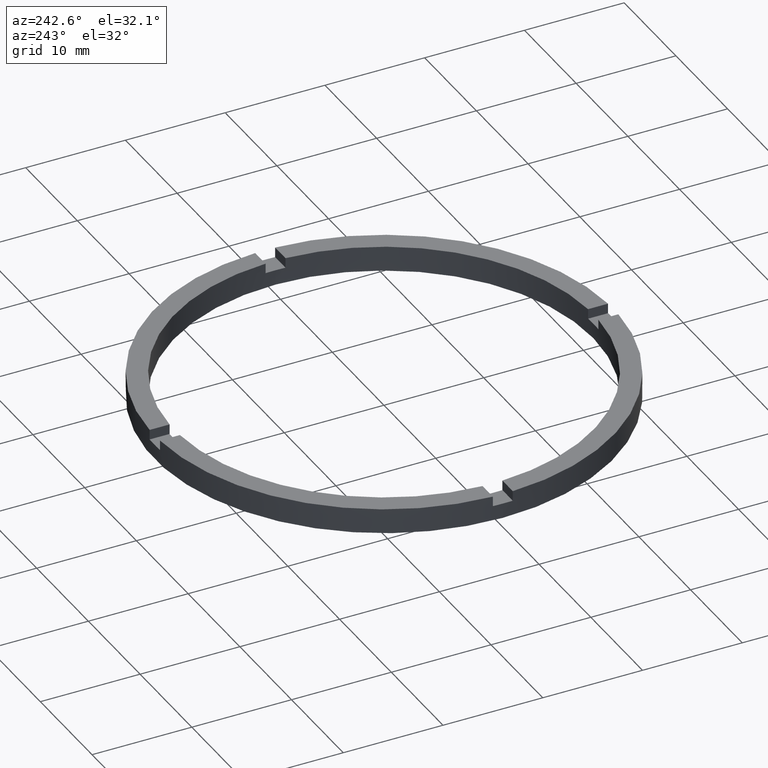
[diagram: clean part render]
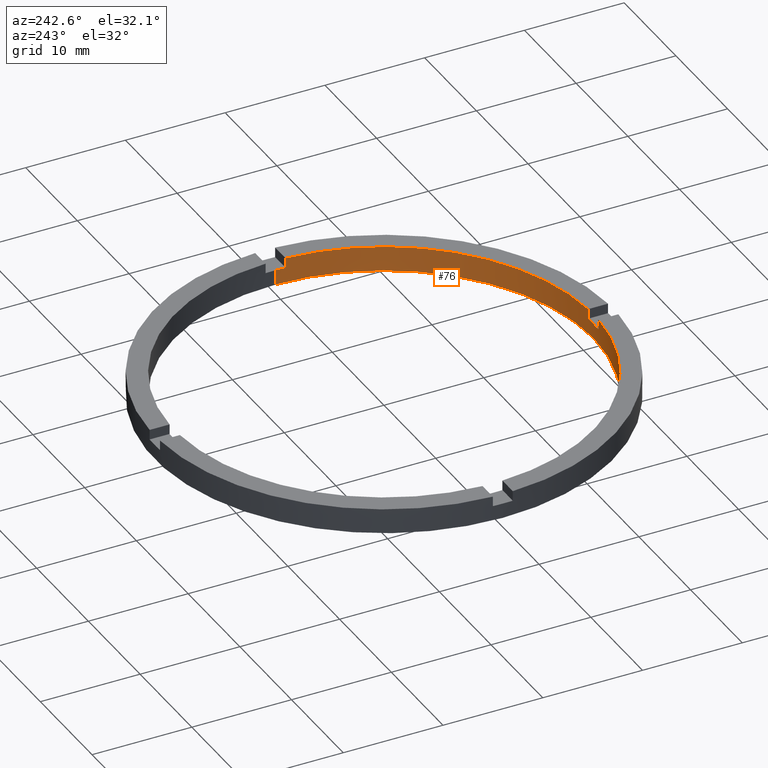
[diagram: same view with one face highlighted and labeled with its STEP entity id]
A machine part, auxiliary view. The second image highlights one B-rep face of the part: STEP entity #76.
In plain terms, the highlighted cylindrical surface (partial cylindrical patch) has radius 21 mm, axis along (-0, -0, -1).
Its self-contained STEP definition (entity closure, byte-faithful):
#5 = ORIENTED_EDGE ( 'NONE', *, *, #530, .F. ) ;
#27 = AXIS2_PLACEMENT_3D ( 'NONE', #288, #682, #547 ) ;
#30 = DIRECTION ( 'NONE',  ( -0.000000000000000000, -0.000000000000000000, -1.000000000000000000 ) ) ;
#33 = DIRECTION ( 'NONE',  ( 0.000000000000000000, 0.000000000000000000, 1.000000000000000000 ) ) ;
#35 = EDGE_CURVE ( 'NONE', #267, #528, #377, .T. ) ;
#39 = ORIENTED_EDGE ( 'NONE', *, *, #207, .F. ) ;
#42 = VERTEX_POINT ( 'NONE', #181 ) ;
#50 = CARTESIAN_POINT ( 'NONE',  ( -1.000000000000161204, -20.97617696340302373, 1.500000000000000000 ) ) ;
#54 = ORIENTED_EDGE ( 'NONE', *, *, #261, .F. ) ;
#55 = EDGE_CURVE ( 'NONE', #273, #751, #109, .T. ) ;
#56 = CARTESIAN_POINT ( 'NONE',  ( 0.9999999999998389066, -20.97617696340304150, 1.500000000000000000 ) ) ;
#57 = CARTESIAN_POINT ( 'NONE',  ( -1.000000000000161204, -20.97617696340302373, 2.500000000000000000 ) ) ;
#58 = DIRECTION ( 'NONE',  ( 0.000000000000000000, 0.000000000000000000, 1.000000000000000000 ) ) ;
#60 = CARTESIAN_POINT ( 'NONE',  ( 0.000000000000000000, 0.000000000000000000, 1.500000000000000000 ) ) ;
#76 = ADVANCED_FACE ( 'NONE', ( #131 ), #125, .F. ) ;
#77 = EDGE_CURVE ( 'NONE', #398, #397, #113, .T. ) ;
#89 = DIRECTION ( 'NONE',  ( -0.000000000000000000, -0.000000000000000000, -1.000000000000000000 ) ) ;
#94 = EDGE_CURVE ( 'NONE', #569, #560, #636, .T. ) ;
#99 = LINE ( 'NONE', #499, #371 ) ;
#109 = CIRCLE ( 'NONE', #587, 21.00000000000000000 ) ;
#113 = CIRCLE ( 'NONE', #177, 21.00000000000000000 ) ;
#125 = CYLINDRICAL_SURFACE ( 'NONE', #27, 21.00000000000000000 ) ;
#131 = FACE_OUTER_BOUND ( 'NONE', #462, .T. ) ;
#138 = VECTOR ( 'NONE', #212, 1000.000000000000000 ) ;
#145 = LINE ( 'NONE', #430, #441 ) ;
#152 = CARTESIAN_POINT ( 'NONE',  ( -21.00000000000000000, 0.000000000000000000, 2.500000000000000000 ) ) ;
#155 = VECTOR ( 'NONE', #531, 1000.000000000000000 ) ;
#177 = AXIS2_PLACEMENT_3D ( 'NONE', #736, #554, #236 ) ;
#180 = CARTESIAN_POINT ( 'NONE',  ( -20.97617696340303084, -1.000000000000025091, 1.500000000000000000 ) ) ;
#181 = CARTESIAN_POINT ( 'NONE',  ( -20.97617696340303084, -1.000000000000025091, 2.500000000000000000 ) ) ;
#184 = CARTESIAN_POINT ( 'NONE',  ( 0.000000000000000000, 0.000000000000000000, 2.500000000000000000 ) ) ;
#207 = EDGE_CURVE ( 'NONE', #273, #540, #99, .T. ) ;
#209 = EDGE_CURVE ( 'NONE', #42, #528, #382, .T. ) ;
#212 = DIRECTION ( 'NONE',  ( -0.000000000000000000, -0.000000000000000000, -1.000000000000000000 ) ) ;
#216 = DIRECTION ( 'NONE',  ( 1.000000000000000000, 0.000000000000000000, 0.000000000000000000 ) ) ;
#220 = DIRECTION ( 'NONE',  ( -0.000000000000000000, 0.000000000000000000, 1.000000000000000000 ) ) ;
#225 = AXIS2_PLACEMENT_3D ( 'NONE', #630, #33, #216 ) ;
#231 = VERTEX_POINT ( 'NONE', #648 ) ;
#236 = DIRECTION ( 'NONE',  ( 1.000000000000000000, 0.000000000000000000, 0.000000000000000000 ) ) ;
#239 = CARTESIAN_POINT ( 'NONE',  ( 21.00000000000000000, 2.571758278209441661E-15, 1.500000000000000000 ) ) ;
#251 = ORIENTED_EDGE ( 'NONE', *, *, #209, .F. ) ;
#260 = ORIENTED_EDGE ( 'NONE', *, *, #94, .T. ) ;
#261 = EDGE_CURVE ( 'NONE', #569, #231, #411, .T. ) ;
#265 = VERTEX_POINT ( 'NONE', #730 ) ;
#267 = VERTEX_POINT ( 'NONE', #776 ) ;
#273 = VERTEX_POINT ( 'NONE', #50 ) ;
#278 = DIRECTION ( 'NONE',  ( -0.000000000000000000, -0.000000000000000000, -1.000000000000000000 ) ) ;
#288 = CARTESIAN_POINT ( 'NONE',  ( 0.000000000000000000, 0.000000000000000000, 2.500000000000000000 ) ) ;
#293 = AXIS2_PLACEMENT_3D ( 'NONE', #745, #297, #348 ) ;
#297 = DIRECTION ( 'NONE',  ( 0.000000000000000000, 0.000000000000000000, 1.000000000000000000 ) ) ;
#299 = AXIS2_PLACEMENT_3D ( 'NONE', #60, #58, #536 ) ;
#328 = ORIENTED_EDGE ( 'NONE', *, *, #77, .F. ) ;
#348 = DIRECTION ( 'NONE',  ( 1.000000000000000000, 0.000000000000000000, 0.000000000000000000 ) ) ;
#351 = ORIENTED_EDGE ( 'NONE', *, *, #620, .T. ) ;
#353 = CARTESIAN_POINT ( 'NONE',  ( 20.97617696340302373, -1.000000000000158096, 1.500000000000000000 ) ) ;
#359 = CARTESIAN_POINT ( 'NONE',  ( 0.000000000000000000, 0.000000000000000000, 1.500000000000000000 ) ) ;
#371 = VECTOR ( 'NONE', #602, 1000.000000000000000 ) ;
#375 = VECTOR ( 'NONE', #278, 1000.000000000000000 ) ;
#377 = CIRCLE ( 'NONE', #299, 21.00000000000000000 ) ;
#382 = LINE ( 'NONE', #492, #375 ) ;
#388 = CARTESIAN_POINT ( 'NONE',  ( 21.00000000000000000, 2.571758278209441661E-15, 0.000000000000000000 ) ) ;
#397 = VERTEX_POINT ( 'NONE', #388 ) ;
#398 = VERTEX_POINT ( 'NONE', #754 ) ;
#411 = LINE ( 'NONE', #659, #155 ) ;
#430 = CARTESIAN_POINT ( 'NONE',  ( 0.9999999999998389066, -20.97617696340304150, 2.500000000000000000 ) ) ;
#441 = VECTOR ( 'NONE', #89, 1000.000000000000000 ) ;
#450 = EDGE_CURVE ( 'NONE', #560, #397, #678, .T. ) ;
#462 = EDGE_LOOP ( 'NONE', ( #260, #768, #328, #518, #513, #251, #351, #39, #525, #5, #522, #54 ) ) ;
#468 = EDGE_CURVE ( 'NONE', #265, #231, #681, .T. ) ;
#489 = EDGE_CURVE ( 'NONE', #267, #398, #687, .T. ) ;
#492 = CARTESIAN_POINT ( 'NONE',  ( -20.97617696340303084, -1.000000000000025091, 2.500000000000000000 ) ) ;
#499 = CARTESIAN_POINT ( 'NONE',  ( -1.000000000000161204, -20.97617696340302373, 2.500000000000000000 ) ) ;
#513 = ORIENTED_EDGE ( 'NONE', *, *, #35, .T. ) ;
#518 = ORIENTED_EDGE ( 'NONE', *, *, #489, .F. ) ;
#522 = ORIENTED_EDGE ( 'NONE', *, *, #468, .T. ) ;
#525 = ORIENTED_EDGE ( 'NONE', *, *, #55, .T. ) ;
#528 = VERTEX_POINT ( 'NONE', #180 ) ;
#530 = EDGE_CURVE ( 'NONE', #265, #751, #145, .T. ) ;
#531 = DIRECTION ( 'NONE',  ( 0.000000000000000000, 0.000000000000000000, 1.000000000000000000 ) ) ;
#536 = DIRECTION ( 'NONE',  ( 1.000000000000000000, 0.000000000000000000, 0.000000000000000000 ) ) ;
#540 = VERTEX_POINT ( 'NONE', #57 ) ;
#547 = DIRECTION ( 'NONE',  ( -1.000000000000000000, 0.000000000000000000, 0.000000000000000000 ) ) ;
#554 = DIRECTION ( 'NONE',  ( 0.000000000000000000, 0.000000000000000000, 1.000000000000000000 ) ) ;
#557 = DIRECTION ( 'NONE',  ( 1.000000000000000000, 0.000000000000000000, 0.000000000000000000 ) ) ;
#560 = VERTEX_POINT ( 'NONE', #239 ) ;
#569 = VERTEX_POINT ( 'NONE', #353 ) ;
#587 = AXIS2_PLACEMENT_3D ( 'NONE', #359, #220, #595 ) ;
#595 = DIRECTION ( 'NONE',  ( 1.000000000000000000, 0.000000000000000000, 0.000000000000000000 ) ) ;
#602 = DIRECTION ( 'NONE',  ( 0.000000000000000000, 0.000000000000000000, 1.000000000000000000 ) ) ;
#620 = EDGE_CURVE ( 'NONE', #42, #540, #705, .T. ) ;
#630 = CARTESIAN_POINT ( 'NONE',  ( 0.000000000000000000, 0.000000000000000000, 2.500000000000000000 ) ) ;
#636 = CIRCLE ( 'NONE', #293, 21.00000000000000000 ) ;
#648 = CARTESIAN_POINT ( 'NONE',  ( 20.97617696340302373, -1.000000000000158096, 2.500000000000000000 ) ) ;
#655 = CARTESIAN_POINT ( 'NONE',  ( 21.00000000000000000, 2.571758278209441661E-15, 2.500000000000000000 ) ) ;
#659 = CARTESIAN_POINT ( 'NONE',  ( 20.97617696340302373, -1.000000000000158096, 2.500000000000000000 ) ) ;
#660 = AXIS2_PLACEMENT_3D ( 'NONE', #184, #738, #557 ) ;
#678 = LINE ( 'NONE', #655, #138 ) ;
#681 = CIRCLE ( 'NONE', #225, 21.00000000000000000 ) ;
#682 = DIRECTION ( 'NONE',  ( -0.000000000000000000, -0.000000000000000000, -1.000000000000000000 ) ) ;
#687 = LINE ( 'NONE', #152, #689 ) ;
#689 = VECTOR ( 'NONE', #30, 1000.000000000000000 ) ;
#705 = CIRCLE ( 'NONE', #660, 21.00000000000000000 ) ;
#730 = CARTESIAN_POINT ( 'NONE',  ( 0.9999999999998389066, -20.97617696340304150, 2.500000000000000000 ) ) ;
#736 = CARTESIAN_POINT ( 'NONE',  ( 0.000000000000000000, 0.000000000000000000, 0.000000000000000000 ) ) ;
#738 = DIRECTION ( 'NONE',  ( 0.000000000000000000, 0.000000000000000000, 1.000000000000000000 ) ) ;
#745 = CARTESIAN_POINT ( 'NONE',  ( 0.000000000000000000, 0.000000000000000000, 1.500000000000000000 ) ) ;
#751 = VERTEX_POINT ( 'NONE', #56 ) ;
#754 = CARTESIAN_POINT ( 'NONE',  ( -21.00000000000000000, 0.000000000000000000, 0.000000000000000000 ) ) ;
#768 = ORIENTED_EDGE ( 'NONE', *, *, #450, .T. ) ;
#776 = CARTESIAN_POINT ( 'NONE',  ( -21.00000000000000000, 0.000000000000000000, 1.500000000000000000 ) ) ;